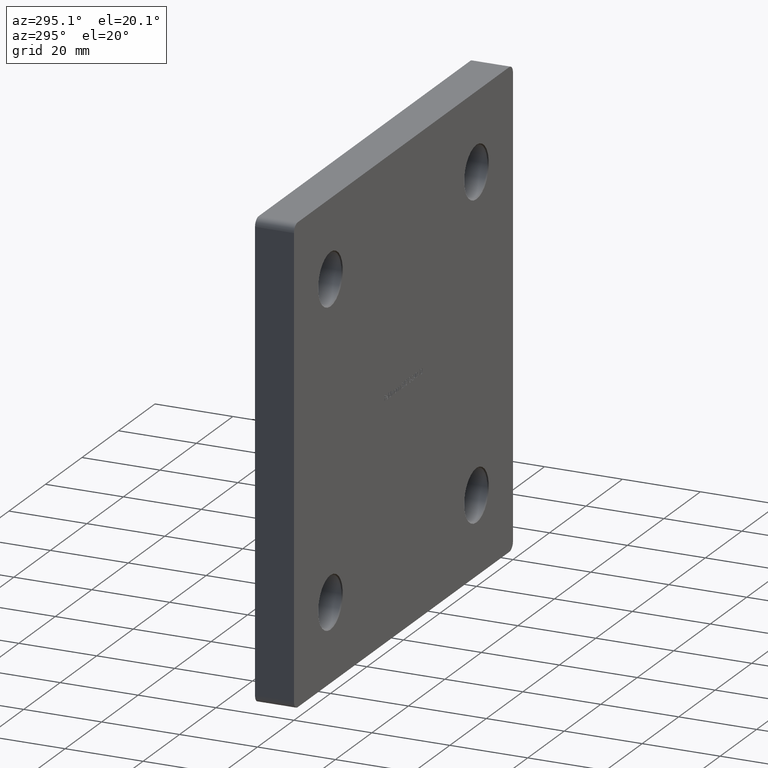
[diagram: clean part render]
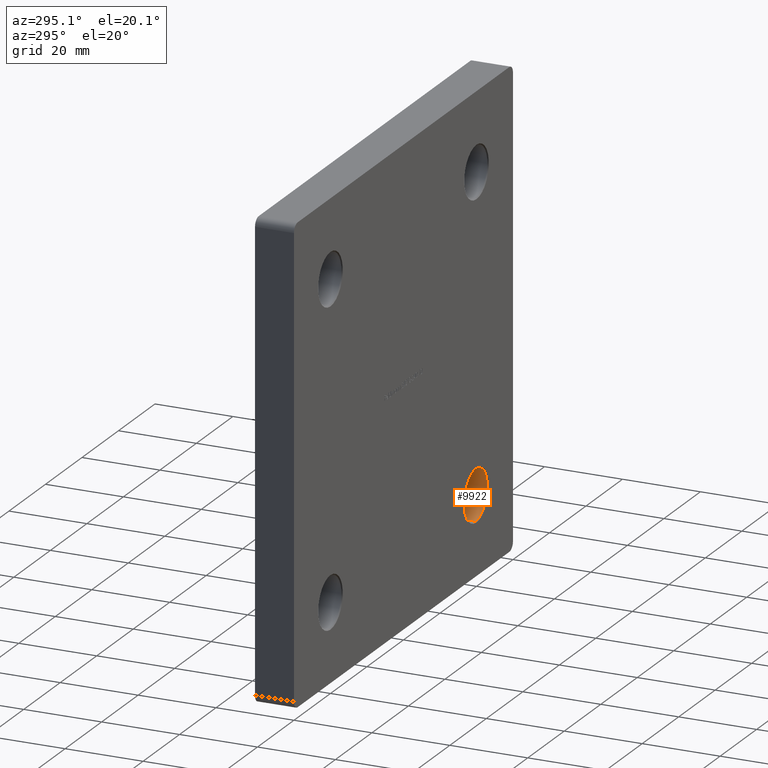
[diagram: same view with one face highlighted and labeled with its STEP entity id]
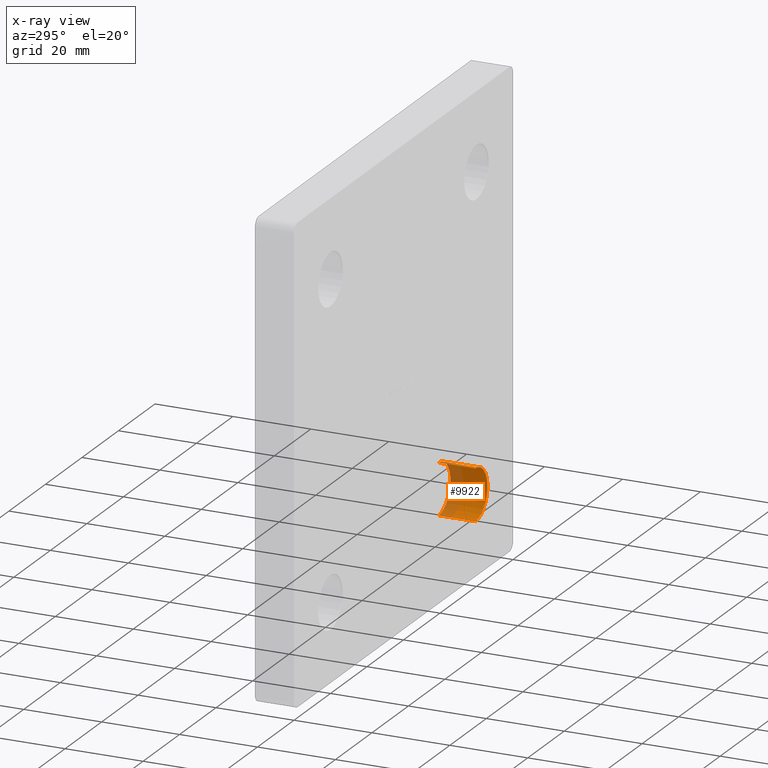
[diagram: x-ray of the same camera — body ghosted, the highlighted face saturated]
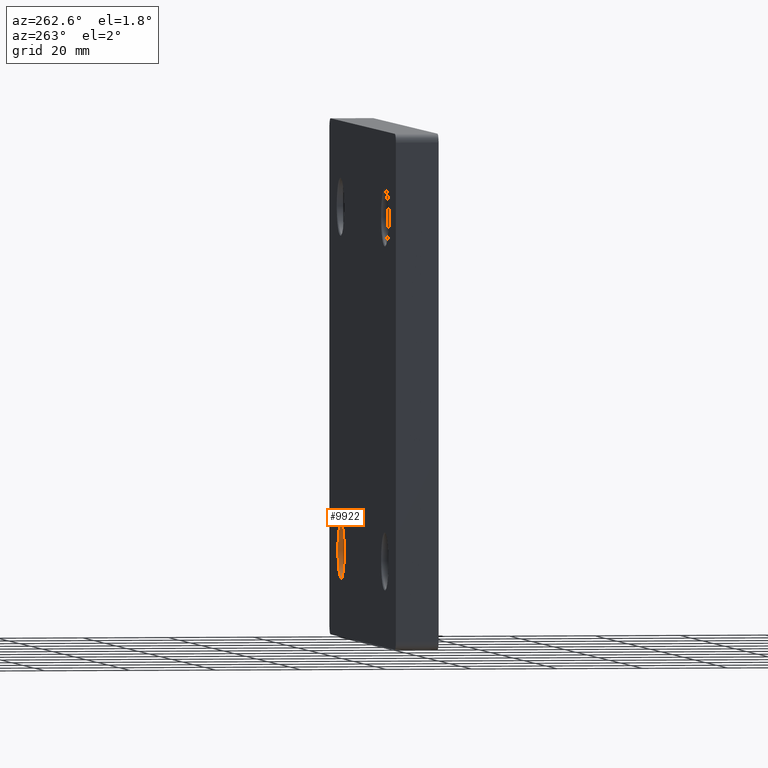
[diagram: same view with one face highlighted and labeled with its STEP entity id]
A machine part, auxiliary view. The second image highlights one B-rep face of the part: STEP entity #9922.
The next image is the same camera in x-ray: the body ghosted, the highlighted face saturated — about 35% of this face is hidden behind the body in this view.
A second angle (auxiliary view) of the same face is appended — the face is thin or edge-on in the first view.
In plain terms, the highlighted cylindrical surface (edge-blend (fillet) strip) has radius 6.5 mm, axis along (-0, 1, -0).
Its self-contained STEP definition (entity closure, byte-faithful):
#203 = CARTESIAN_POINT ( 'NONE',  ( 40.00000000000000000, 9.749999999999996447, -40.00000000000000000 ) ) ;
#230 = CYLINDRICAL_SURFACE ( 'NONE', #11179, 6.499999999999999112 ) ;
#441 = CARTESIAN_POINT ( 'NONE',  ( 40.00000000000000000, 0.000000000000000000, -40.00000000000000000 ) ) ;
#490 = DIRECTION ( 'NONE',  ( -0.000000000000000000, 1.000000000000000000, -0.000000000000000000 ) ) ;
#1897 = ORIENTED_EDGE ( 'NONE', *, *, #7272, .T. ) ;
#1901 = CARTESIAN_POINT ( 'NONE',  ( 40.00000000000000000, 0.2499999999999854838, -33.50000000000000000 ) ) ;
#2043 = ORIENTED_EDGE ( 'NONE', *, *, #8790, .T. ) ;
#2204 = DIRECTION ( 'NONE',  ( 0.000000000000000000, 0.000000000000000000, 1.000000000000000000 ) ) ;
#2213 = DIRECTION ( 'NONE',  ( 0.000000000000000000, 0.000000000000000000, 1.000000000000000000 ) ) ;
#2758 = EDGE_LOOP ( 'NONE', ( #5691, #2043, #1897, #6763 ) ) ;
#2911 = CIRCLE ( 'NONE', #10360, 6.499999999999999112 ) ;
#3608 = CARTESIAN_POINT ( 'NONE',  ( 40.00000000000000000, 0.2499999999999854838, -46.50000000000000000 ) ) ;
#3672 = CARTESIAN_POINT ( 'NONE',  ( 40.00000000000000000, 0.000000000000000000, -46.50000000000000000 ) ) ;
#3753 = FACE_OUTER_BOUND ( 'NONE', #2758, .T. ) ;
#4662 = DIRECTION ( 'NONE',  ( -0.000000000000000000, 1.000000000000000000, -0.000000000000000000 ) ) ;
#4753 = DIRECTION ( 'NONE',  ( 0.000000000000000000, 0.000000000000000000, 1.000000000000000000 ) ) ;
#5245 = VERTEX_POINT ( 'NONE', #1901 ) ;
#5415 = VECTOR ( 'NONE', #10966, 1000.000000000000000 ) ;
#5691 = ORIENTED_EDGE ( 'NONE', *, *, #12899, .F. ) ;
#6387 = CARTESIAN_POINT ( 'NONE',  ( 40.00000000000000000, 0.2499999999999854838, -40.00000000000000000 ) ) ;
#6763 = ORIENTED_EDGE ( 'NONE', *, *, #10219, .T. ) ;
#7269 = VERTEX_POINT ( 'NONE', #8917 ) ;
#7272 = EDGE_CURVE ( 'NONE', #5245, #10213, #10476, .T. ) ;
#7507 = DIRECTION ( 'NONE',  ( -0.000000000000000000, -1.000000000000000000, -0.000000000000000000 ) ) ;
#8644 = CIRCLE ( 'NONE', #11701, 6.499999999999999112 ) ;
#8790 = EDGE_CURVE ( 'NONE', #11196, #5245, #8644, .T. ) ;
#8917 = CARTESIAN_POINT ( 'NONE',  ( 40.00000000000000000, 9.749999999999996447, -46.50000000000000000 ) ) ;
#9922 = ADVANCED_FACE ( 'NONE', ( #3753 ), #230, .F. ) ;
#9967 = VECTOR ( 'NONE', #4662, 1000.000000000000000 ) ;
#10213 = VERTEX_POINT ( 'NONE', #11624 ) ;
#10219 = EDGE_CURVE ( 'NONE', #10213, #7269, #2911, .T. ) ;
#10360 = AXIS2_PLACEMENT_3D ( 'NONE', #203, #12868, #2213 ) ;
#10476 = LINE ( 'NONE', #11071, #9967 ) ;
#10966 = DIRECTION ( 'NONE',  ( -0.000000000000000000, 1.000000000000000000, -0.000000000000000000 ) ) ;
#11071 = CARTESIAN_POINT ( 'NONE',  ( 40.00000000000000000, 0.000000000000000000, -33.50000000000000000 ) ) ;
#11092 = LINE ( 'NONE', #3672, #5415 ) ;
#11179 = AXIS2_PLACEMENT_3D ( 'NONE', #441, #490, #4753 ) ;
#11196 = VERTEX_POINT ( 'NONE', #3608 ) ;
#11624 = CARTESIAN_POINT ( 'NONE',  ( 40.00000000000000000, 9.749999999999996447, -33.50000000000000000 ) ) ;
#11701 = AXIS2_PLACEMENT_3D ( 'NONE', #6387, #7507, #2204 ) ;
#12868 = DIRECTION ( 'NONE',  ( 0.000000000000000000, 1.000000000000000000, 0.000000000000000000 ) ) ;
#12899 = EDGE_CURVE ( 'NONE', #11196, #7269, #11092, .T. ) ;